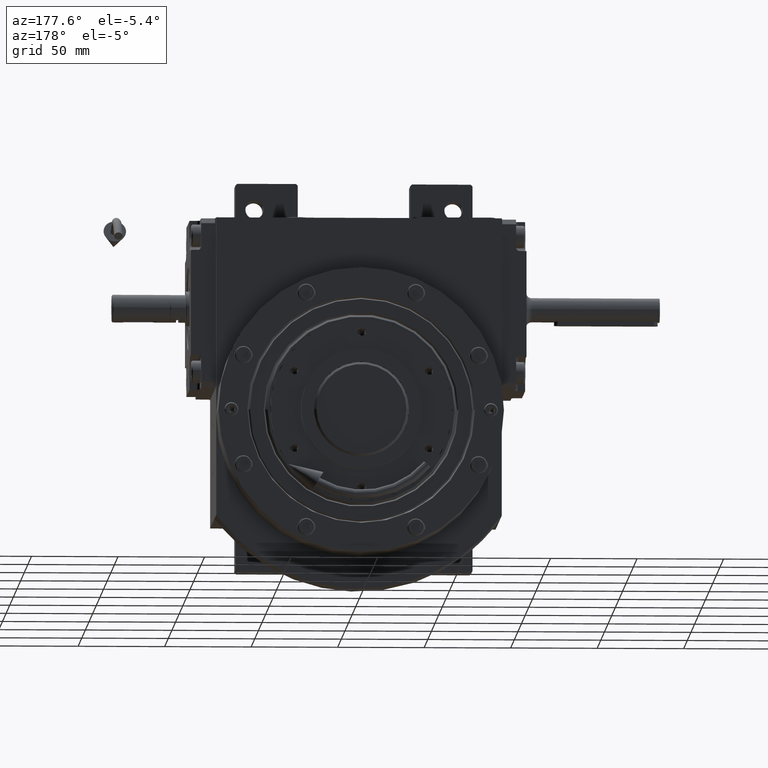
[diagram: clean part render]
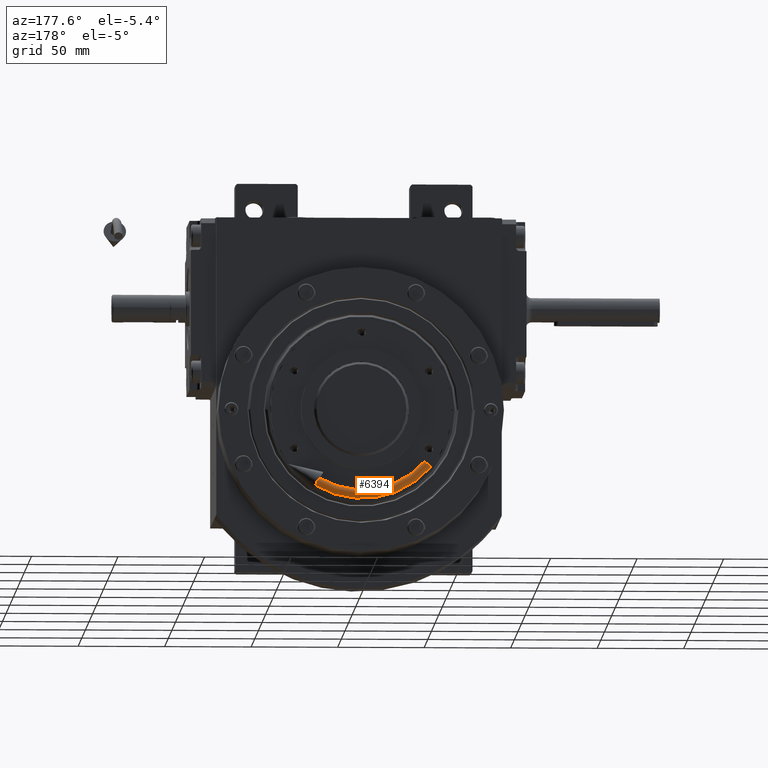
[diagram: same view with one face highlighted and labeled with its STEP entity id]
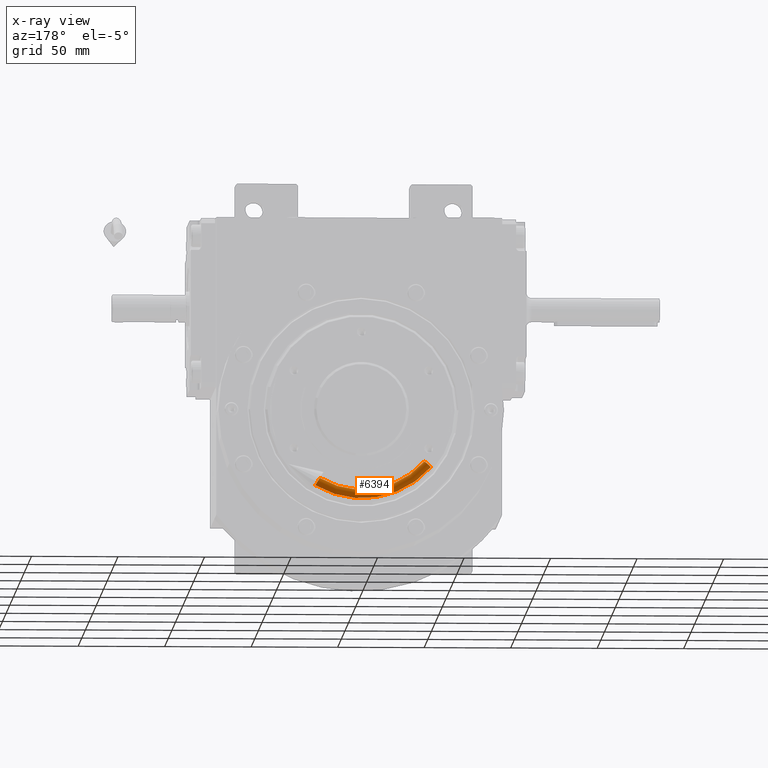
[diagram: x-ray of the same camera — body ghosted, the highlighted face saturated]
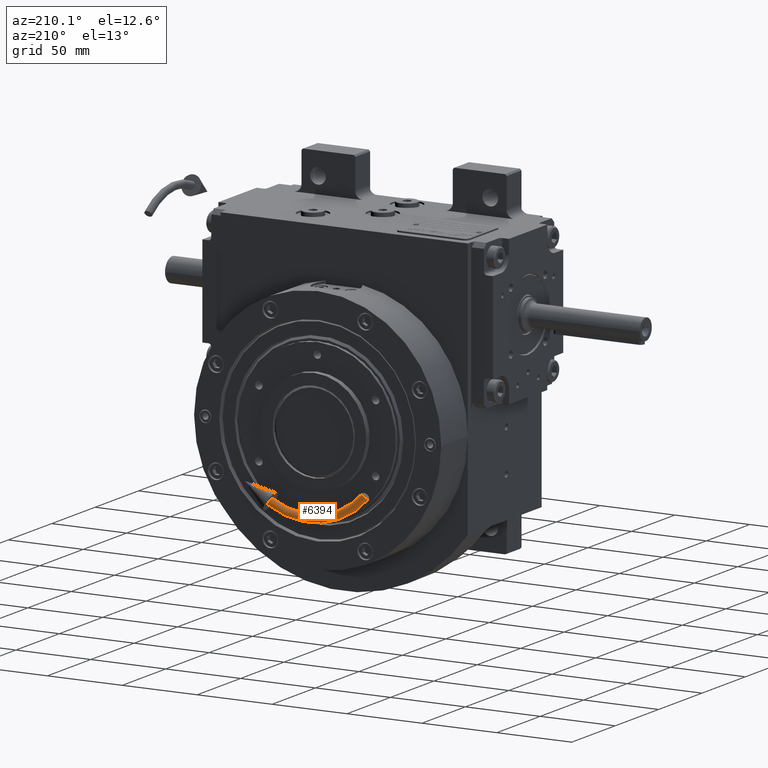
[diagram: same view with one face highlighted and labeled with its STEP entity id]
A machine part, auxiliary view. The second image highlights one B-rep face of the part: STEP entity #6394.
The next image is the same camera in x-ray: the body ghosted, the highlighted face saturated — about 0% of this face is hidden behind the body in this view.
A second angle (auxiliary view) of the same face is appended — the face is thin or edge-on in the first view.
In plain terms, the highlighted toroidal blend (fillet) surface has major radius 50 mm and minor (blend) radius 2.5 mm.
Its self-contained STEP definition (entity closure, byte-faithful):
#1482 = DIRECTION ( 'NONE',  ( 1.000000000000000000, -2.041375527991182042E-16, 0.000000000000000000 ) ) ;
#1885 = AXIS2_PLACEMENT_3D ( 'NONE', #53891, #14877, #48753 ) ;
#4755 = EDGE_CURVE ( 'NONE', #11870, #29600, #27002, .T. ) ;
#4842 = CARTESIAN_POINT ( 'NONE',  ( -8.248288439181953535, -1.188784069127382043E-14, 46.77836826809632953 ) ) ;
#6394 = ADVANCED_FACE ( 'NONE', ( #57002 ), #16779, .T. ) ;
#9713 = ORIENTED_EDGE ( 'NONE', *, *, #4755, .F. ) ;
#11146 = DIRECTION ( 'NONE',  ( 5.551115123125820913E-17, 0.000000000000000000, 1.000000000000000000 ) ) ;
#11870 = VERTEX_POINT ( 'NONE', #4842 ) ;
#13423 = CARTESIAN_POINT ( 'NONE',  ( -9.116529327510729530, -1.201676182087502474E-14, 51.70240703312413189 ) ) ;
#14877 = DIRECTION ( 'NONE',  ( -2.041375527991182042E-16, -1.000000000000000000, 1.232595164407830946E-32 ) ) ;
#15021 = CARTESIAN_POINT ( 'NONE',  ( -47.50000000001650591, 0.000000000000000000, -1.401656568589166416E-14 ) ) ;
#16779 = TOROIDAL_SURFACE ( 'NONE', #38381, 50.00000000000000000, 2.499999999983133048 ) ;
#17325 = DIRECTION ( 'NONE',  ( -2.041375527991182042E-16, -1.000000000000000000, 1.232595164407830946E-32 ) ) ;
#20815 = CARTESIAN_POINT ( 'NONE',  ( 6.249910015488181172E-32, -1.357162610802968412E-14, -3.773734306815928641E-48 ) ) ;
#25579 = CIRCLE ( 'NONE', #31717, 47.50000000001686828 ) ;
#26496 = VERTEX_POINT ( 'NONE', #49529 ) ;
#26498 = VERTEX_POINT ( 'NONE', #15021 ) ;
#26955 = CARTESIAN_POINT ( 'NONE',  ( -49.99999999999962341, 0.000000000000000000, -1.387778780781445676E-14 ) ) ;
#27002 = CIRCLE ( 'NONE', #61943, 2.499999999983113064 ) ;
#29600 = VERTEX_POINT ( 'NONE', #13423 ) ;
#30847 = CIRCLE ( 'NONE', #1885, 52.49999999998313882 ) ;
#31037 = EDGE_LOOP ( 'NONE', ( #43042, #9713, #40630, #62121 ) ) ;
#31717 = AXIS2_PLACEMENT_3D ( 'NONE', #20815, #44714, #1482 ) ;
#33749 = EDGE_CURVE ( 'NONE', #29600, #26496, #30847, .T. ) ;
#36692 = CARTESIAN_POINT ( 'NONE',  ( 0.000000000000000000, -1.387778780781445676E-14, 0.000000000000000000 ) ) ;
#38381 = AXIS2_PLACEMENT_3D ( 'NONE', #36692, #17325, #56345 ) ;
#39751 = CIRCLE ( 'NONE', #49039, 2.499999999983113064 ) ;
#40630 = ORIENTED_EDGE ( 'NONE', *, *, #55443, .T. ) ;
#42270 = EDGE_CURVE ( 'NONE', #26498, #26496, #39751, .T. ) ;
#43042 = ORIENTED_EDGE ( 'NONE', *, *, #33749, .F. ) ;
#44714 = DIRECTION ( 'NONE',  ( -2.041375527991182042E-16, -1.000000000000000000, 1.232595164407830946E-32 ) ) ;
#46462 = DIRECTION ( 'NONE',  ( 0.1736481776669271393, 1.686894387621676009E-16, -0.9848077530122086864 ) ) ;
#48753 = DIRECTION ( 'NONE',  ( 1.000000000000000000, -2.041375527991181795E-16, 0.000000000000000000 ) ) ;
#49039 = AXIS2_PLACEMENT_3D ( 'NONE', #26955, #11146, #61114 ) ;
#49529 = CARTESIAN_POINT ( 'NONE',  ( -52.49999999998293276, -3.160566285864233684E-15, -1.373900992973723831E-14 ) ) ;
#53891 = CARTESIAN_POINT ( 'NONE',  ( 0.000000000000000000, -1.387778780781445676E-14, 0.000000000000000000 ) ) ;
#55443 = EDGE_CURVE ( 'NONE', #11870, #26498, #25579, .T. ) ;
#56345 = DIRECTION ( 'NONE',  ( 1.000000000000000000, -2.041375527991182042E-16, -5.551115123125820913E-17 ) ) ;
#56438 = CARTESIAN_POINT ( 'NONE',  ( -8.682408883346308670, -1.387778780781445676E-14, 49.24038765061003176 ) ) ;
#57002 = FACE_OUTER_BOUND ( 'NONE', #31037, .T. ) ;
#60632 = DIRECTION ( 'NONE',  ( 0.9848077530122086864, -2.010362446775138044E-16, 0.1736481776669274446 ) ) ;
#61114 = DIRECTION ( 'NONE',  ( 1.000000000000000000, 0.000000000000000000, -5.551115123125813517E-17 ) ) ;
#61943 = AXIS2_PLACEMENT_3D ( 'NONE', #56438, #60632, #46462 ) ;
#62121 = ORIENTED_EDGE ( 'NONE', *, *, #42270, .T. ) ;